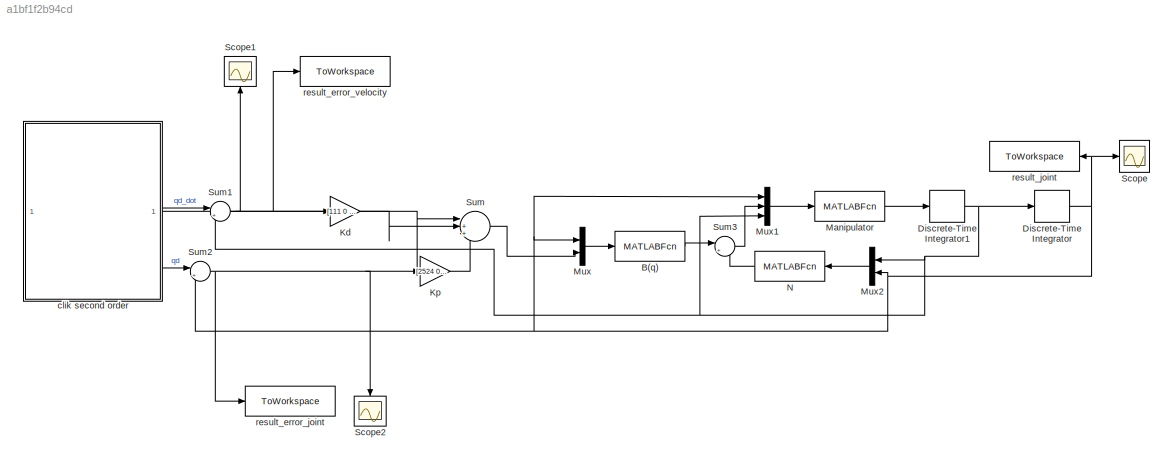
MODEL mdl_a1bf1f2b94cd
KIND model
CONFIG AbsTol = auto
CONFIG EnableMultiTasking = off
CONFIG FixedStep = auto
CONFIG MaxStep = auto
CONFIG MinStep = auto
CONFIG RelTol = 1e-3
CONFIG SampleTimeConstraint = Unconstrained
CONFIG SolverName = VariableStepAuto
CONFIG StartTime = 0.0
CONFIG StopTime = 10.0
BLOCK [MATLABFcn] B(q)
  MATLABFcn = B
  OutputDimensions = 4
BLOCK [DiscreteIntegrator] Discrete-Time Integrator
  ICPrevOutput = DiscIntNeverNeededParam
  ICPrevScaledInput = DiscIntNeverNeededParam
  InitialCondition = q0
  InitialConditionSetting = Auto
  LimitOutput = on
  LowerSaturationLimit = [-inf;-inf;-inf;-inf]
  SampleTime = Tc
  UpperSaturationLimit = [inf;inf;inf;inf]
BLOCK [DiscreteIntegrator] Discrete-Time Integrator1
  ICPrevOutput = DiscIntNeverNeededParam
  ICPrevScaledInput = DiscIntNeverNeededParam
  InitialCondition = q0
  InitialConditionSetting = Auto
  SampleTime = 0.001
BLOCK [Gain] Kd
  Gain = [111 0 0 0;0 111 0 0;0 0 171 0;0 0 0 171]
  Multiplication = Matrix(K*u)
BLOCK [Gain] Kp
  Gain = [2524 0 0 0;0 2524 0 0;0 0 2524 0;0 0 0 2524]
  Multiplication = Matrix(K*u)
BLOCK [MATLABFcn] Manipulator
  MATLABFcn = manipulator
  OutputDimensions = 4
BLOCK [Mux] Mux
  DisplayOption = bar
  Inputs = 2
BLOCK [Mux] Mux1
  DisplayOption = bar
  Inputs = 3
BLOCK [Mux] Mux2
  DisplayOption = bar
  Inputs = 2
  NameLocation = top
BLOCK [MATLABFcn] N
  MATLABFcn = n
  OutputDimensions = 4
BLOCK [Scope] Scope
  Floating = off
  NumInputPorts = 1
  ScopeSpecificationString = Simulink.scopes.TimeScopeBlockCfg('CurrentConfiguration', extmgr.ConfigurationSet(extmgr.Configuration('Core','General UI',true),extmgr.Configuration('Core','Source UI',true),extmgr.Configuration('Sources','WiredSimulink',true,'DataLoggingVariableName','ScopeData1'),extmgr.Configuration('Visuals','Time Domain',true,'SerializedDisplays',{struct('MinYLimReal','-2.16688','MaxYLimReal','6.58105','YLab...<+1409ch>
BLOCK [Scope] Scope1
  Floating = off
  NameLocation = right
  NumInputPorts = 1
  ScopeSpecificationString = Simulink.scopes.TimeScopeBlockCfg('CurrentConfiguration', extmgr.ConfigurationSet(extmgr.Configuration('Core','General UI',true),extmgr.Configuration('Core','Source UI',true),extmgr.Configuration('Sources','WiredSimulink',true,'DataLoggingVariableName','ScopeData2'),extmgr.Configuration('Visuals','Time Domain',true,'SerializedDisplays',{struct('MinYLimReal','-0.0000000000000006','MaxYLimReal','0.0...<+1509ch>
BLOCK [Scope] Scope2
  Floating = off
  NameLocation = left
  NumInputPorts = 1
  ScopeSpecificationString = Simulink.scopes.TimeScopeBlockCfg('CurrentConfiguration', extmgr.ConfigurationSet(extmgr.Configuration('Core','General UI',true),extmgr.Configuration('Core','Source UI',true),extmgr.Configuration('Sources','WiredSimulink',true),extmgr.Configuration('Visuals','Time Domain',true,'SerializedDisplays',{struct('MinYLimReal','-1.00000','MaxYLimReal','1.00000','YLabelReal','','MinYLimMag','0.00000','MaxY...<+1382ch>
BLOCK [Sum] Sum
  Inputs = |+++
BLOCK [Sum] Sum1
  Inputs = |+-
BLOCK [Sum] Sum2
  Inputs = |+-
BLOCK [Sum] Sum3
  Inputs = |++
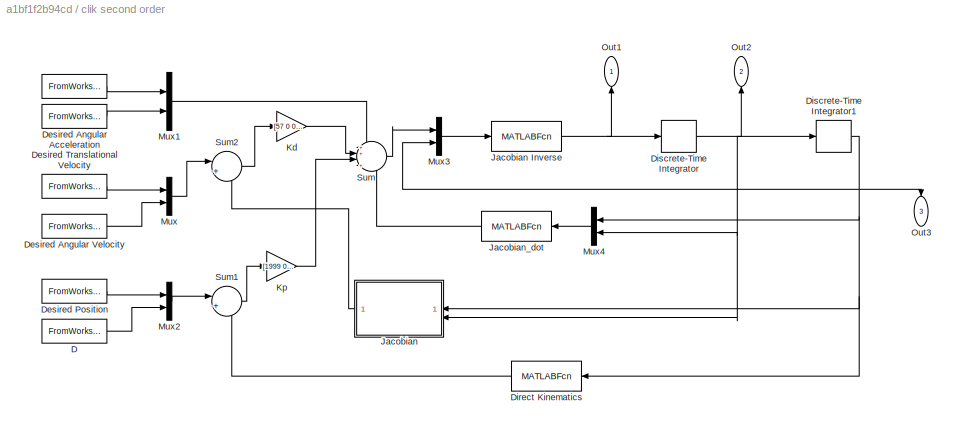
BLOCK [SubSystem] clik second order
BLOCK [FromWorkspace] clik second order/ 
  SampleTime = 0.001
  VariableName = [t,hold_acc]
BLOCK [FromWorkspace] clik second order/D
  NameLocation = left
  SampleTime = 0.001
  VariableName = [t,theta_d]
BLOCK [FromWorkspace] clik second order/Desired Angular Acceleration
  NameLocation = left
  SampleTime = 0.001
  VariableName = [t,theta_d_dot_dot]
BLOCK [FromWorkspace] clik second order/Desired Angular Velocity
  NameLocation = left
  SampleTime = 0.001
  VariableName = [t,theta_d_dot]
BLOCK [FromWorkspace] clik second order/Desired Position
  SampleTime = 0.001
  VariableName = [t,hold_pos]
BLOCK [FromWorkspace] clik second order/Desired Translational Velocity
  NameLocation = left
  SampleTime = 0.001
  VariableName = [t,hold_vel]
BLOCK [MATLABFcn] clik second order/Direct Kinematics
  MATLABFcn = direct_kin
  OutputDimensions = 4
BLOCK [DiscreteIntegrator] clik second order/Discrete-Time Integrator
  ICPrevOutput = DiscIntNeverNeededParam
  ICPrevScaledInput = DiscIntNeverNeededParam
  InitialCondition = q0
  InitialConditionSetting = Auto
  SampleTime = Tc
BLOCK [DiscreteIntegrator] clik second order/Discrete-Time Integrator1
  ICPrevOutput = DiscIntNeverNeededParam
  ICPrevScaledInput = DiscIntNeverNeededParam
  InitialCondition = q0
  InitialConditionSetting = Auto
  SampleTime = Tc
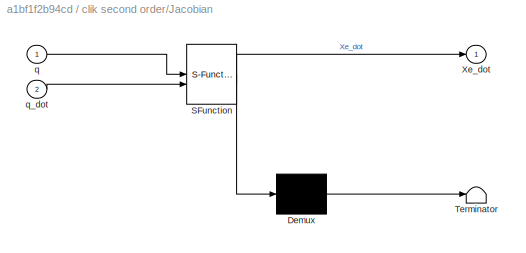
BLOCK [SubSystem] clik second order/Jacobian 
  ErrorFcn = Stateflow.Translate.translate
  PermitHierarchicalResolution = ExplicitOnly
  SFBlockType = MATLAB Function
  TreatAsAtomicUnit = on
BLOCK [Demux] clik second order/Jacobian / Demux 
  Outputs = 1
BLOCK [S-Function] clik second order/Jacobian / SFunction 
  EnableBusSupport = on
  FunctionName = sf_sfun
  PortCounts = [2 2]
  SFcnIsStateOwnerBlock = off
  SFunctionDeploymentMode = off
  Tag = Stateflow S-Function 2
BLOCK [Terminator] clik second order/Jacobian / Terminator 
BLOCK [Outport] clik second order/Jacobian /Xe_dot
BLOCK [Inport] clik second order/Jacobian /q
BLOCK [Inport] clik second order/Jacobian /q_dot
  Port = 2
BLOCK [MATLABFcn] clik second order/Jacobian Inverse
  MATLABFcn = jacobian_inverse
  OutputDimensions = 4
BLOCK [MATLABFcn] clik second order/Jacobian_dot
  MATLABFcn = jacobian_dot
  OutputDimensions = 4
BLOCK [Gain] clik second order/Kd
  Gain = [57 0 0 0;0 58 0 0;0 0 59 0;0 0 0 60]
  Multiplication = Matrix(K*u)
BLOCK [Gain] clik second order/Kp
  Gain = [1999 0 0 0;0 2000 0 0;0 0 2001 0;0 0 0 2002]
  Multiplication = Matrix(K*u)
BLOCK [Mux] clik second order/Mux
  DisplayOption = bar
  Inputs = 2
BLOCK [Mux] clik second order/Mux1
  DisplayOption = bar
  Inputs = 2
BLOCK [Mux] clik second order/Mux2
  DisplayOption = bar
  Inputs = 2
BLOCK [Mux] clik second order/Mux3
  DisplayOption = bar
  Inputs = 2
BLOCK [Mux] clik second order/Mux4
  DisplayOption = bar
  Inputs = 2
  NameLocation = top
BLOCK [Outport] clik second order/Out1
  NameLocation = right
BLOCK [Outport] clik second order/Out2
  NameLocation = right
  Port = 2
BLOCK [Outport] clik second order/Out3
  NameLocation = left
  Port = 3
BLOCK [Sum] clik second order/Sum
  Inputs = ++|+-
BLOCK [Sum] clik second order/Sum1
  Inputs = |+-
BLOCK [Sum] clik second order/Sum2
  Inputs = |+-
BLOCK [ToWorkspace] result_error_joint
  FixptAsFi = on
  MaxDataPoints = inf
  SampleTime = -1
  VariableName = result_error_joint
BLOCK [ToWorkspace] result_error_velocity
  FixptAsFi = on
  MaxDataPoints = inf
  SampleTime = -1
  VariableName = result_error_velocity
BLOCK [ToWorkspace] result_joint
  FixptAsFi = on
  MaxDataPoints = inf
  NameLocation = top
  SampleTime = -1
  VariableName = result_joint
LINE B(q):1 -> Sum3:1
NET Discrete-Time Integrator1:1 -> Discrete-Time Integrator:1, Mux1:3, Mux2:1, Sum1:2
NET Discrete-Time Integrator:1 -> Mux1:1, Mux2:2, Mux:1, Scope:1, Sum2:2, result_joint:1
LINE Kd:1 -> Sum:2
LINE Kp:1 -> Sum:3
LINE Manipulator:1 -> Discrete-Time Integrator1:1
LINE Mux1:1 -> Manipulator:1
LINE Mux2:1 -> N:1
LINE Mux:1 -> B(q):1
LINE N:1 -> Sum3:2
NET Sum1:1 -> Kd:1, Scope1:1, result_error_velocity:1
NET Sum2:1 -> Kp:1, Scope2:1, result_error_joint:1
LINE Sum3:1 -> Mux1:2
LINE Sum:1 -> Mux:2
LINE clik second order/ :1 -> clik second order/Mux1:1
LINE clik second order/D:1 -> clik second order/Mux2:2
LINE clik second order/Desired Angular Acceleration:1 -> clik second order/Mux1:2
LINE clik second order/Desired Angular Velocity:1 -> clik second order/Mux:2
LINE clik second order/Desired Position:1 -> clik second order/Mux2:1
LINE clik second order/Desired Translational Velocity:1 -> clik second order/Mux:1
LINE clik second order/Direct Kinematics:1 -> clik second order/Sum1:2
NET clik second order/Discrete-Time Integrator1:1 -> clik second order/Direct Kinematics:1, clik second order/Jacobian :1, clik second order/Mux3:2, clik second order/Mux4:1, clik second order/Out3:1
NET clik second order/Discrete-Time Integrator:1 -> clik second order/Discrete-Time Integrator1:1, clik second order/Jacobian :2, clik second order/Mux4:2, clik second order/Out2:1
LINE clik second order/Jacobian :1 -> clik second order/Sum2:2
NET clik second order/Jacobian Inverse:1 -> clik second order/Discrete-Time Integrator:1, clik second order/Out1:1
LINE clik second order/Jacobian_dot:1 -> clik second order/Sum:4
LINE clik second order/Kd:1 -> clik second order/Sum:2
LINE clik second order/Kp:1 -> clik second order/Sum:3
LINE clik second order/Mux1:1 -> clik second order/Sum:1
LINE clik second order/Mux2:1 -> clik second order/Sum1:1
LINE clik second order/Mux3:1 -> clik second order/Jacobian Inverse:1
LINE clik second order/Mux4:1 -> clik second order/Jacobian_dot:1
LINE clik second order/Mux:1 -> clik second order/Sum2:1
LINE clik second order/Sum1:1 -> clik second order/Kp:1
LINE clik second order/Sum2:1 -> clik second order/Kd:1
LINE clik second order/Sum:1 -> clik second order/Mux3:1
LINE clik second order:1 -> Sum:1
LINE clik second order:2 -> Sum1:1
LINE clik second order:3 -> Sum2:1
note: NET lines group one-source signal fan-out (src -> all destinations, sorted); 1:1 wires keep LINE
CHART clik second order/Jacobian  states=1 transitions=1
  STATE_LABEL 'eML_blk_kernel()'
  STATE_LABEL 'SCRIPT:\nfunction Xe_dot= fcn(q,q_dot)\n    % given angles\n    theta1=q(1);\n    theta2=q(2);\n    % given inputs\n    a1=0.5;\n    a2=0.5;\n    \n    jacobian_mat=[- a2*sin(theta1 + theta2) - a1*sin(theta1), -a2*sin(theta1 + theta2), 0, 0; \n        a2*cos(theta1 + theta2) + a1*cos(theta1), a2*cos(theta1 + theta2), 0,0; \n        0, 0, -1, 0;\n        1, 1, 0, 1];\n    \n    Xe_dot=jacobian_mat*q_dot;\n\nend\n'
CHART  states=0 transitions=0
